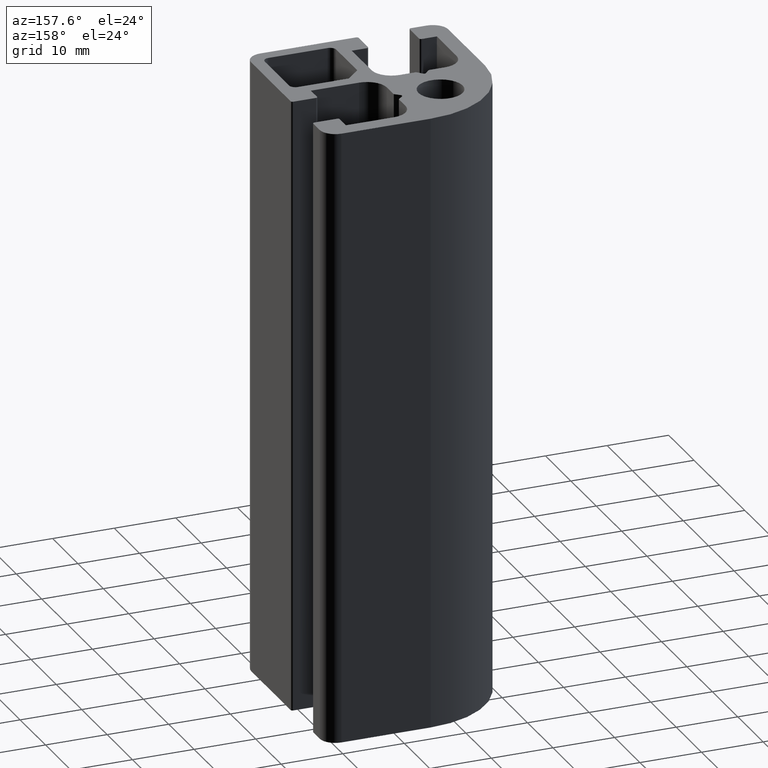
[diagram: clean part render]
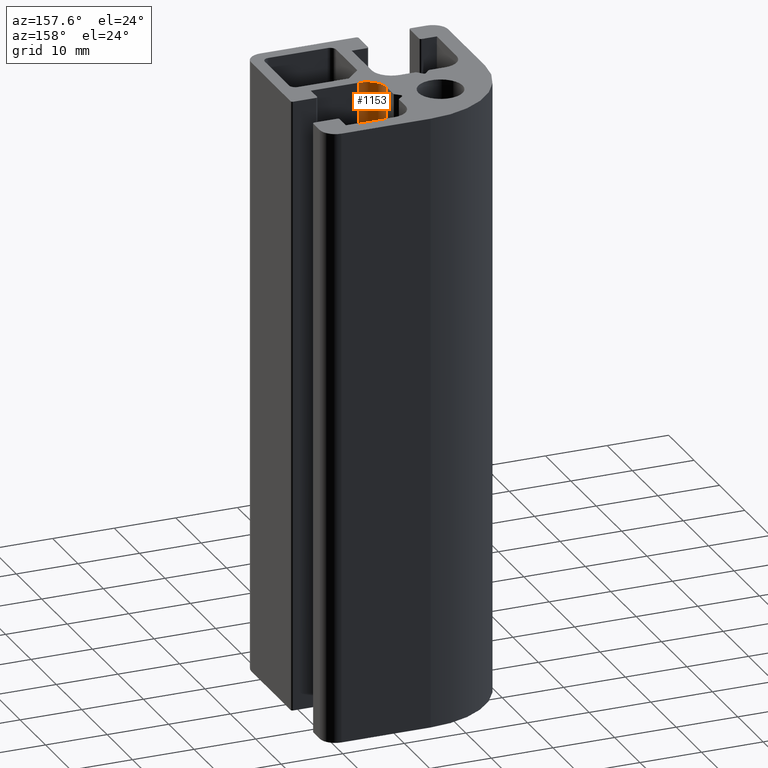
[diagram: same view with one face highlighted and labeled with its STEP entity id]
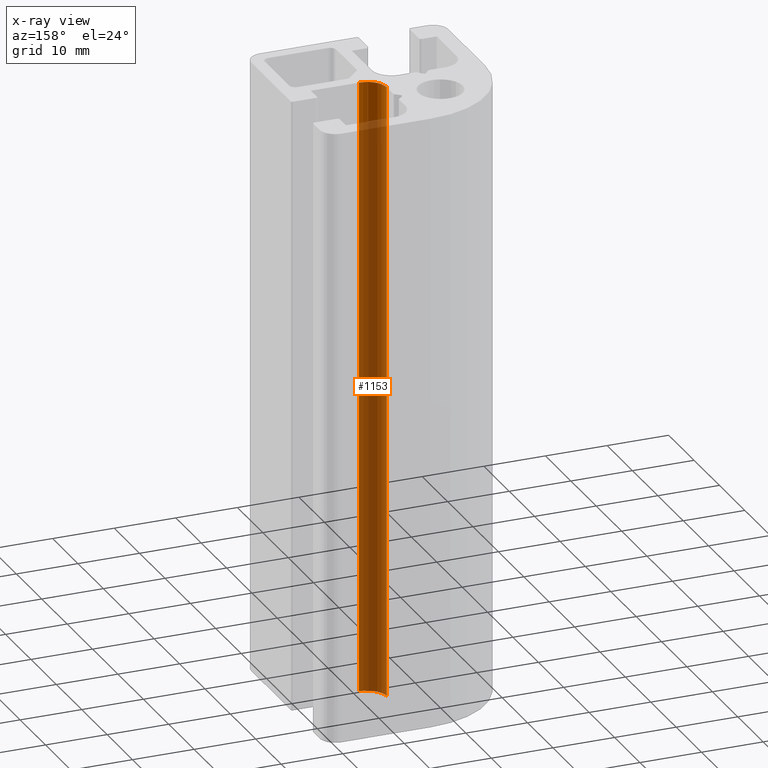
[diagram: x-ray of the same camera — body ghosted, the highlighted face saturated]
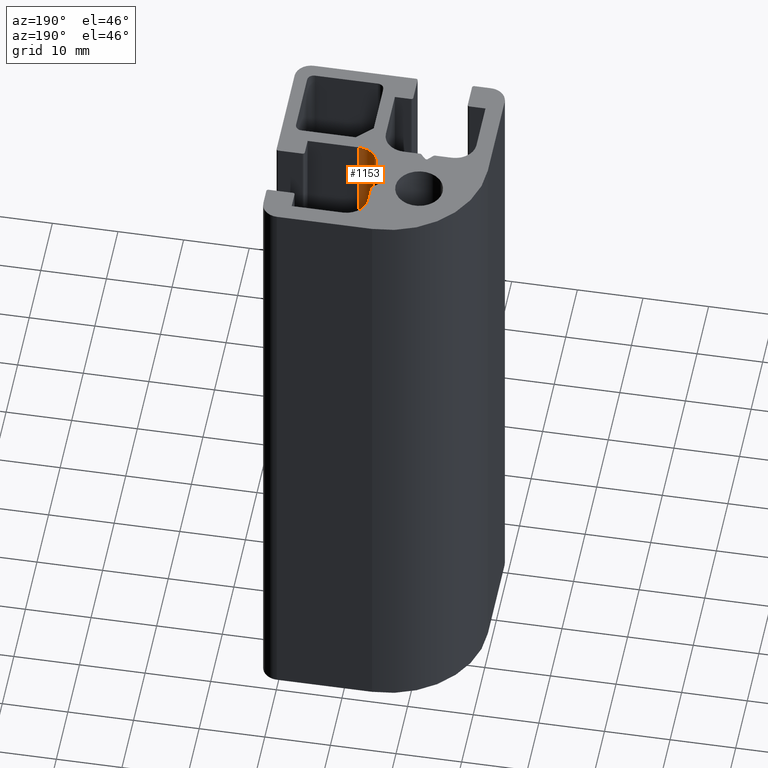
[diagram: same view with one face highlighted and labeled with its STEP entity id]
A machine part, auxiliary view. The second image highlights one B-rep face of the part: STEP entity #1153.
The next image is the same camera in x-ray: the body ghosted, the highlighted face saturated — about 94% of this face is hidden behind the body in this view.
A second angle (auxiliary view) of the same face is appended — the face is thin or edge-on in the first view.
In plain terms, the highlighted cylindrical surface (edge-blend (fillet) strip) has radius 3.2 mm, axis along (0, 0, 1).
Its self-contained STEP definition (entity closure, byte-faithful):
#129=LINE('',#1869,#247);
#131=LINE('',#1875,#249);
#247=VECTOR('',#1519,100.);
#249=VECTOR('',#1525,100.);
#328=FACE_OUTER_BOUND('',#388,.T.);
#388=EDGE_LOOP('',(#902,#903,#904,#905));
#448=CIRCLE('',#1251,3.20000006879091);
#449=CIRCLE('',#1252,3.20000006879091);
#546=VERTEX_POINT('',#1866);
#547=VERTEX_POINT('',#1868);
#548=VERTEX_POINT('',#1872);
#549=VERTEX_POINT('',#1874);
#695=EDGE_CURVE('',#547,#546,#129,.T.);
#697=EDGE_CURVE('',#548,#546,#448,.T.);
#698=EDGE_CURVE('',#549,#548,#131,.T.);
#699=EDGE_CURVE('',#547,#549,#449,.T.);
#902=ORIENTED_EDGE('',*,*,#697,.F.);
#903=ORIENTED_EDGE('',*,*,#698,.F.);
#904=ORIENTED_EDGE('',*,*,#699,.F.);
#905=ORIENTED_EDGE('',*,*,#695,.T.);
#1106=CYLINDRICAL_SURFACE('',#1250,3.20000006879091);
#1153=ADVANCED_FACE('',(#328),#1106,.F.);
#1250=AXIS2_PLACEMENT_3D('',#1871,#1521,#1522);
#1251=AXIS2_PLACEMENT_3D('',#1873,#1523,#1524);
#1252=AXIS2_PLACEMENT_3D('',#1876,#1526,#1527);
#1519=DIRECTION('',(0.,0.,1.));
#1521=DIRECTION('center_axis',(0.,0.,1.));
#1522=DIRECTION('ref_axis',(-1.,0.,0.));
#1523=DIRECTION('center_axis',(0.,0.,-1.));
#1524=DIRECTION('ref_axis',(-1.,0.,0.));
#1525=DIRECTION('',(0.,0.,1.));
#1526=DIRECTION('center_axis',(0.,0.,1.));
#1527=DIRECTION('ref_axis',(-1.,0.,0.));
#1866=CARTESIAN_POINT('',(7.2,-3.69999993120908,100.));
#1868=CARTESIAN_POINT('',(7.2,-3.69999993120908,0.));
#1869=CARTESIAN_POINT('',(7.2,-3.69999993120908,0.));
#1871=CARTESIAN_POINT('Origin',(10.4000000687909,-3.69999993120908,0.));
#1872=CARTESIAN_POINT('',(10.4000000687909,-6.9,100.));
#1873=CARTESIAN_POINT('Origin',(10.4000000687909,-3.69999993120908,100.));
#1874=CARTESIAN_POINT('',(10.4000000687909,-6.9,0.));
#1875=CARTESIAN_POINT('',(10.4000000687909,-6.9,0.));
#1876=CARTESIAN_POINT('Origin',(10.4000000687909,-3.69999993120908,0.));